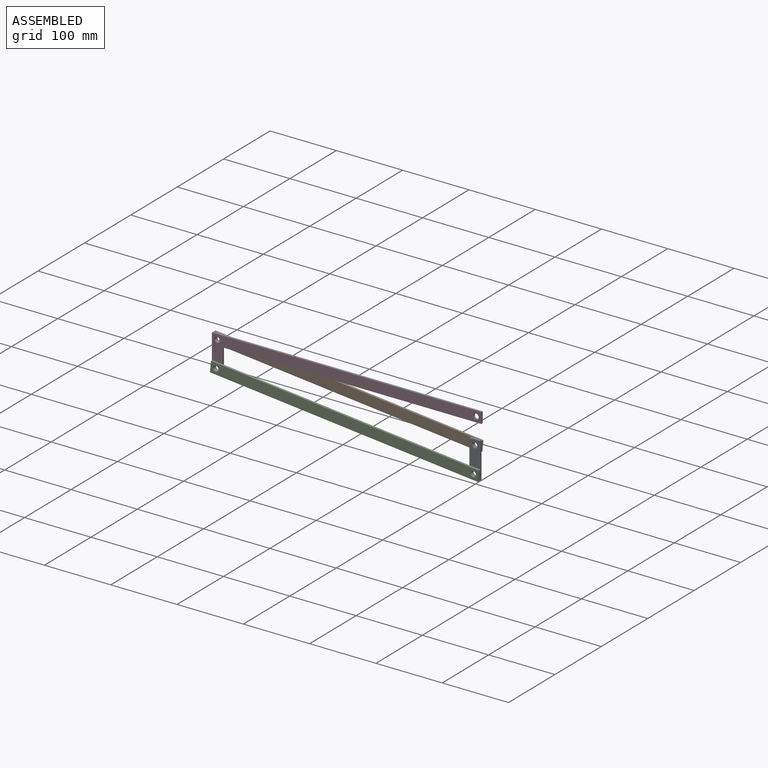
[diagram: assembled view]
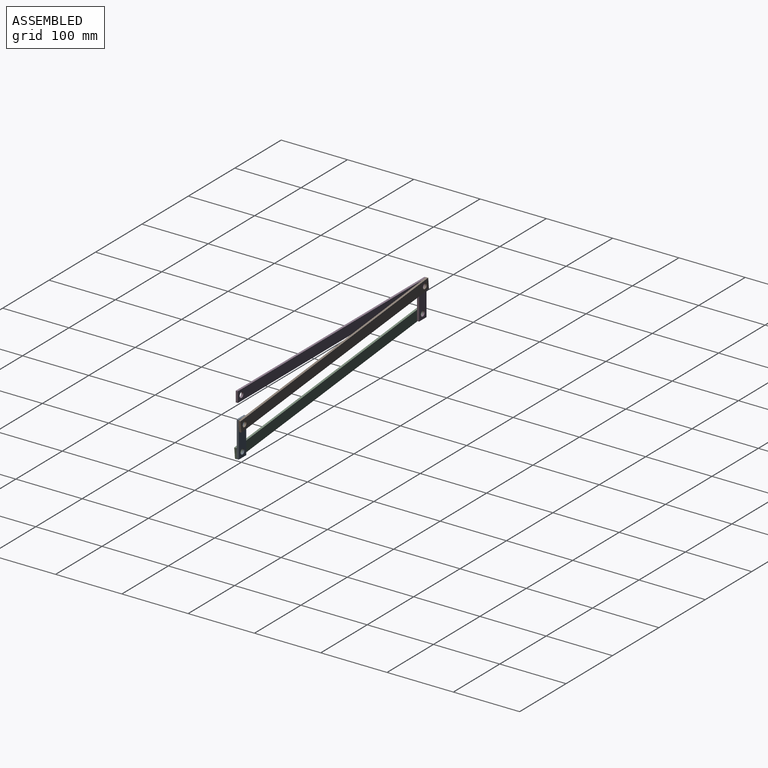
[diagram: assembled view, second angle]
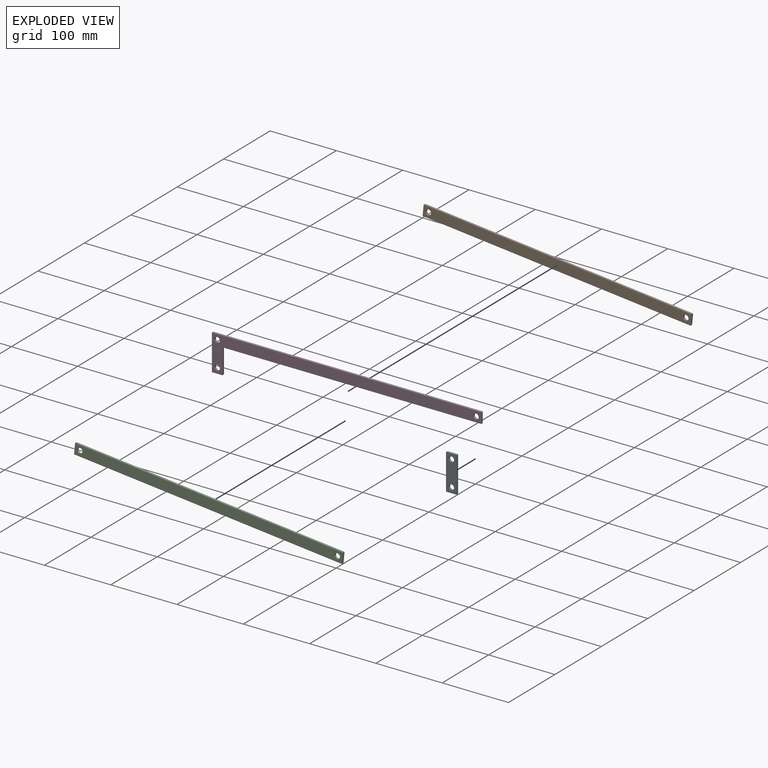
[diagram: exploded view]
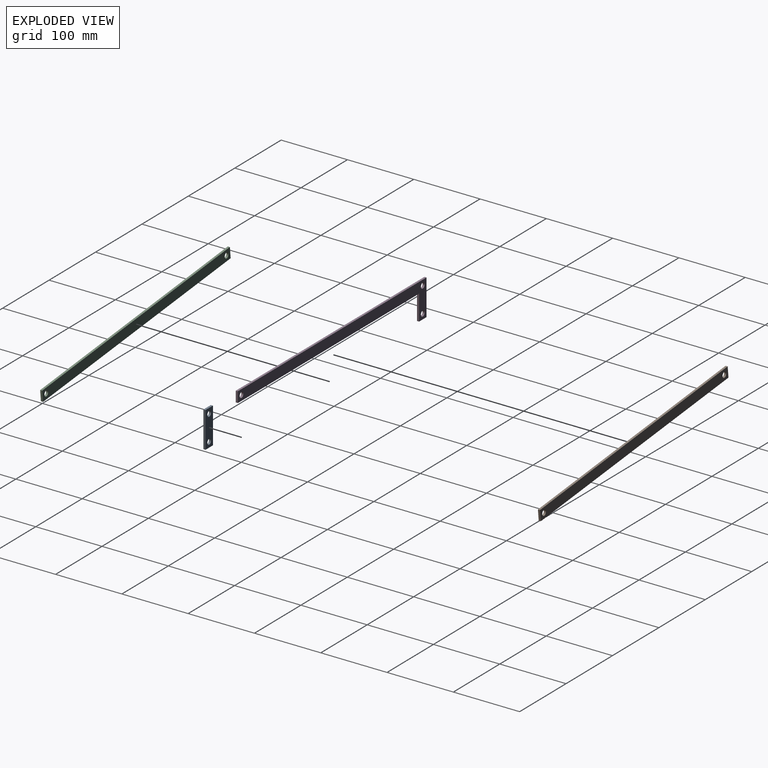
[diagram: exploded view, second angle]
ASSEMBLY  parts=4 mates=4
PART A: 8 faces, bbox 16x3.2x54.1 mm
  f0: plane 16x3.18mm, normal (0,0,1), area 50.8mm2, adj f1,f5,f6,f7
  f1: plane 54.1x3.18mm, normal (-1,0,0), area 171.8mm2, adj f0,f2,f6,f7
  f2: plane 16x3.18mm, normal (0,0,-1), area 50.8mm2, adj f1,f5,f6,f7
  f3: cylinder r=4mm len=8mm, axis (0,1,0), area 79.8mm2, adj f6,f7
  f4: cylinder r=4mm len=8mm, axis (0,1,0), area 79.8mm2, adj f6,f7
  f5: plane 54.1x3.18mm, normal (1,0,0), area 171.8mm2, adj f0,f2,f6,f7
  f6: plane 54.1x16mm, normal (0,-1,0), area 765.1mm2, adj f0,f1,f2,f3,f4,f5
  f7: plane 54.1x16mm, normal (0,1,0), area 765.1mm2, adj f0,f1,f2,f3,f4,f5
PART B: 8 faces, bbox 406.4x3.2x16 mm
  f0: plane 406.4x3.18mm, normal (0,0,1), area 1290.3mm2, adj f1,f5,f6,f7
  f1: plane 16x3.18mm, normal (-1,0,0), area 50.8mm2, adj f0,f2,f6,f7
  f2: plane 406.4x3.18mm, normal (0,0,-1), area 1290.3mm2, adj f1,f5,f6,f7
  f3: cylinder r=4mm len=8mm, axis (0,1,0), area 79.8mm2, adj f6,f7
  f4: cylinder r=4mm len=8mm, axis (0,1,0), area 79.8mm2, adj f6,f7
  f5: plane 16x3.18mm, normal (1,0,0), area 50.8mm2, adj f0,f2,f6,f7
  f6: plane 406.4x16mm, normal (0,-1,0), area 6401.9mm2, adj f0,f1,f2,f3,f4,f5
  f7: plane 406.4x16mm, normal (0,1,0), area 6401.9mm2, adj f0,f1,f2,f3,f4,f5
PART C: same geometry as B
PART D: 11 faces, bbox 406.4x3.2x54.1 mm
  f0: plane 406.4x3.18mm, normal (0,0,1), area 1290.3mm2, adj f1,f7,f9,f10
  f1: plane 54.1x3.18mm, normal (-1,0,0), area 171.8mm2, adj f0,f2,f9,f10
  f2: plane 16x3.18mm, normal (0,0,-1), area 50.8mm2, adj f1,f3,f9,f10
  f3: plane 38.1x3.18mm, normal (1,0,0), area 121mm2, adj f2,f4,f9,f10
  f4: plane 390.4x3.18mm, normal (0,0,-1), area 1239.5mm2, adj f3,f7,f9,f10
  f5: cylinder r=4mm len=8mm, axis (0,1,0), area 79.8mm2, adj f9,f10
  f6: cylinder r=4mm len=8mm, axis (0,1,0), area 79.8mm2, adj f9,f10
  f7: plane 16x3.18mm, normal (1,0,0), area 50.8mm2, adj f0,f4,f9,f10
  f8: cylinder r=4mm len=8mm, axis (0,1,0), area 79.8mm2, adj f9,f10
  f9: plane 406.4x54.1mm, normal (0,-1,0), area 6961.2mm2, adj f0,f1,f2,f3,f4,f5,f6,f7
  f10: plane 406.4x54.1mm, normal (0,1,0), area 6961.2mm2, adj f0,f1,f2,f3,f4,f5,f6,f7
PLACE A t=(32.72,1.82,-28.11)mm fixed
PLACE B rot(axis=(0,-1,0),174.1deg) t=(-49.27,4.99,-69.89)mm
PLACE C rot(axis=(0,-1,0),174.1deg) t=(-49.27,-1.36,-107.99)mm
PLACE D t=(-374.73,1.82,8.65)mm
MATE revolute C.f4 <-> D.f5  axis (0,1,0) through (-388.52,-1.36,39.9)mm
MATE revolute B.f3 <-> A.f4  axis (0,-1,0) through (-0.16,1.82,38.18)mm
MATE revolute A.f3 <-> C.f3  axis (0,-1,0) through (-0.16,-1.36,0.08)mm
MATE revolute B.f4 <-> D.f6  axis (0,-1,0) through (-388.52,1.82,78)mm
